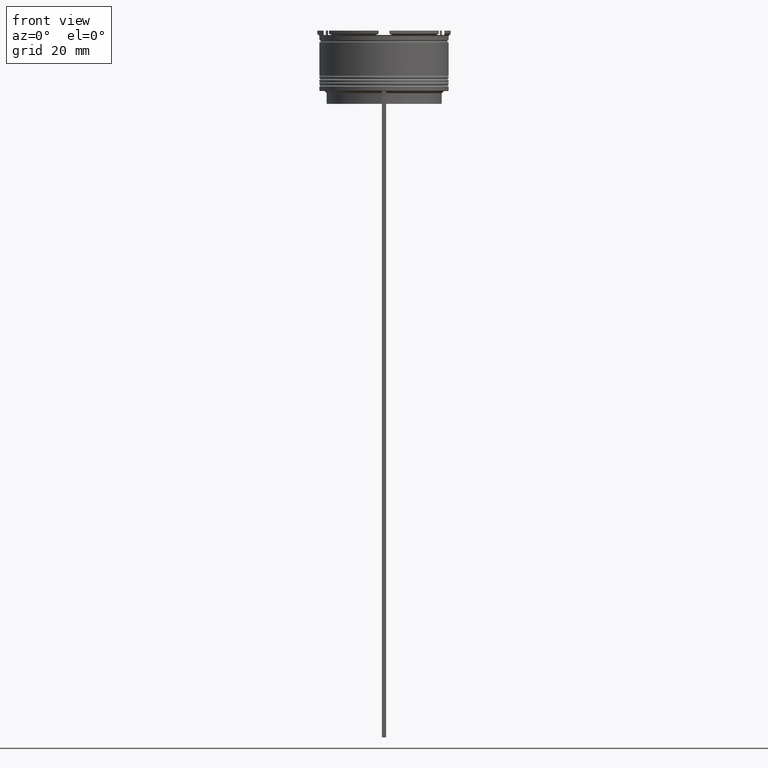
[diagram: clean part render]
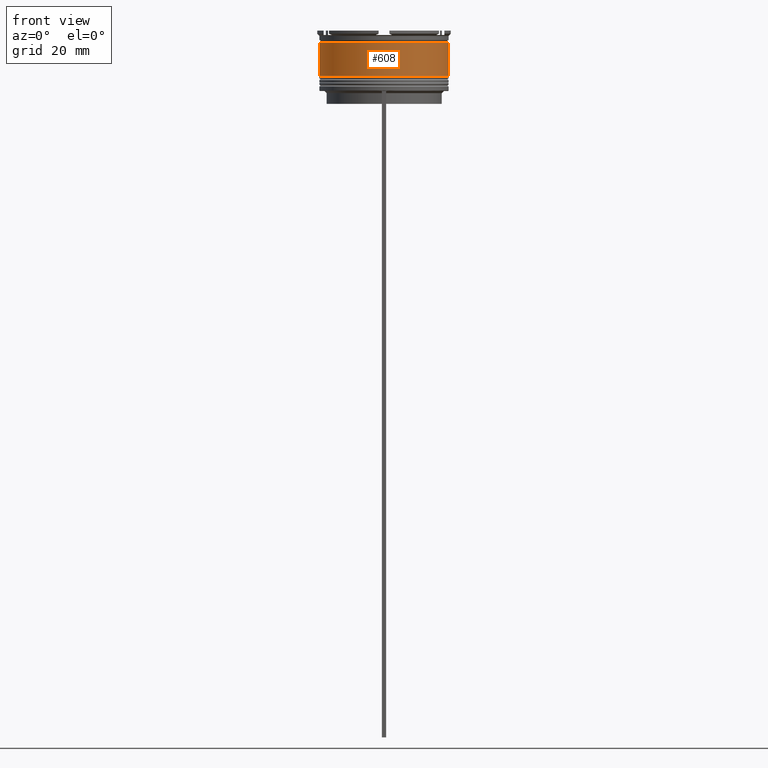
[diagram: same view with one face highlighted and labeled with its STEP entity id]
A machine part, front view. The second image highlights one B-rep face of the part: STEP entity #608.
In plain terms, the highlighted cylindrical surface (partial cylindrical patch) has radius 15 mm, axis along (-0, -0, 1).
Its self-contained STEP definition (entity closure, byte-faithful):
#27 = EDGE_LOOP ( 'NONE', ( #2800, #831, #1671, #1038 ) ) ;
#71 = CARTESIAN_POINT ( 'NONE',  ( 0.000000000000000000, 0.000000000000000000, -2.699999999999999734 ) ) ;
#208 = CARTESIAN_POINT ( 'NONE',  ( 0.000000000000000000, 0.000000000000000000, 0.000000000000000000 ) ) ;
#257 = DIRECTION ( 'NONE',  ( -0.000000000000000000, -0.000000000000000000, 1.000000000000000000 ) ) ;
#416 = CARTESIAN_POINT ( 'NONE',  ( -15.00000000000000355, 1.836970198721029983E-15, -10.50000000000000178 ) ) ;
#424 = EDGE_CURVE ( 'NONE', #2559, #1998, #1979, .T. ) ;
#522 = DIRECTION ( 'NONE',  ( 1.000000000000000000, 0.000000000000000000, 0.000000000000000000 ) ) ;
#608 = ADVANCED_FACE ( 'NONE', ( #1964 ), #2425, .T. ) ;
#735 = CARTESIAN_POINT ( 'NONE',  ( 14.99999999999999822, 0.000000000000000000, -2.699999999999999734 ) ) ;
#831 = ORIENTED_EDGE ( 'NONE', *, *, #928, .T. ) ;
#883 = DIRECTION ( 'NONE',  ( 1.000000000000000000, 0.000000000000000000, 0.000000000000000000 ) ) ;
#928 = EDGE_CURVE ( 'NONE', #1873, #1838, #1849, .T. ) ;
#1038 = ORIENTED_EDGE ( 'NONE', *, *, #424, .F. ) ;
#1044 = DIRECTION ( 'NONE',  ( -0.000000000000000000, -0.000000000000000000, 1.000000000000000000 ) ) ;
#1159 = AXIS2_PLACEMENT_3D ( 'NONE', #71, #257, #522 ) ;
#1346 = EDGE_CURVE ( 'NONE', #1873, #2559, #2769, .T. ) ;
#1396 = VECTOR ( 'NONE', #1537, 1000.000000000000000 ) ;
#1421 = DIRECTION ( 'NONE',  ( 1.000000000000000000, 0.000000000000000000, 0.000000000000000000 ) ) ;
#1459 = CARTESIAN_POINT ( 'NONE',  ( -14.99999999999999822, 1.836970198721029194E-15, -2.699999999999999734 ) ) ;
#1518 = LINE ( 'NONE', #2852, #1396 ) ;
#1537 = DIRECTION ( 'NONE',  ( -0.000000000000000000, -0.000000000000000000, 1.000000000000000000 ) ) ;
#1577 = CARTESIAN_POINT ( 'NONE',  ( 15.00000000000000178, 0.000000000000000000, -10.50000000000000178 ) ) ;
#1671 = ORIENTED_EDGE ( 'NONE', *, *, #1982, .T. ) ;
#1699 = AXIS2_PLACEMENT_3D ( 'NONE', #1716, #2096, #1421 ) ;
#1716 = CARTESIAN_POINT ( 'NONE',  ( 0.000000000000000000, 0.000000000000000000, -10.50000000000000178 ) ) ;
#1838 = VERTEX_POINT ( 'NONE', #1577 ) ;
#1849 = CIRCLE ( 'NONE', #1699, 15.00000000000000178 ) ;
#1873 = VERTEX_POINT ( 'NONE', #416 ) ;
#1964 = FACE_OUTER_BOUND ( 'NONE', #27, .T. ) ;
#1979 = CIRCLE ( 'NONE', #1159, 14.99999999999999822 ) ;
#1982 = EDGE_CURVE ( 'NONE', #1838, #1998, #1518, .T. ) ;
#1998 = VERTEX_POINT ( 'NONE', #735 ) ;
#2028 = VECTOR ( 'NONE', #1044, 1000.000000000000000 ) ;
#2096 = DIRECTION ( 'NONE',  ( -0.000000000000000000, -0.000000000000000000, 1.000000000000000000 ) ) ;
#2425 = CYLINDRICAL_SURFACE ( 'NONE', #2484, 15.00000000000000000 ) ;
#2484 = AXIS2_PLACEMENT_3D ( 'NONE', #208, #2862, #883 ) ;
#2559 = VERTEX_POINT ( 'NONE', #1459 ) ;
#2769 = LINE ( 'NONE', #2801, #2028 ) ;
#2800 = ORIENTED_EDGE ( 'NONE', *, *, #1346, .F. ) ;
#2801 = CARTESIAN_POINT ( 'NONE',  ( -15.00000000000000000, 1.836970198721029589E-15, 0.000000000000000000 ) ) ;
#2852 = CARTESIAN_POINT ( 'NONE',  ( 15.00000000000000000, 0.000000000000000000, 0.000000000000000000 ) ) ;
#2862 = DIRECTION ( 'NONE',  ( -0.000000000000000000, -0.000000000000000000, 1.000000000000000000 ) ) ;